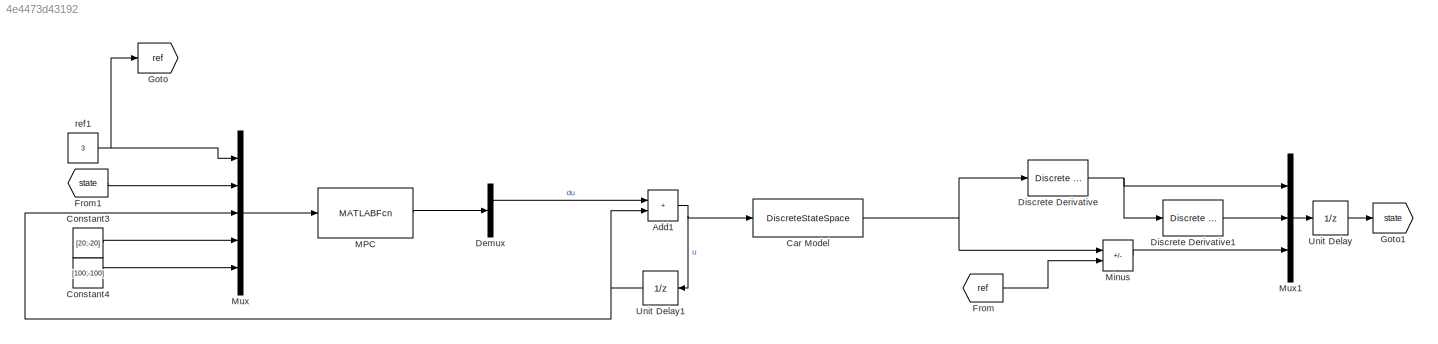
MODEL slx_4e4473d43192
KIND model
CONFIG AbsTol = auto
CONFIG EnableMultiTasking = off
CONFIG FixedStep = 1
CONFIG MaxStep = auto
CONFIG MinStep = auto
CONFIG RelTol = 1e-3
CONFIG SampleTimeConstraint = Unconstrained
CONFIG SolverName = ode1
CONFIG StartTime = 0.0
CONFIG StopTime = 360
BLOCK [Sum] Add1
  IconShape = rectangular
BLOCK [DiscreteStateSpace] Car Model
  A = A
  B = B
  C = C
  D = D
BLOCK [Constant] Constant3
  Value = [20;-20]
BLOCK [Constant] Constant4
  Value = [100;-100]
BLOCK [Demux] Demux
  Outputs = 2
BLOCK [Reference] Discrete Derivative  REF=simulink/Discrete/Discrete Derivative
  SourceBlock = simulink/Discrete/Discrete Derivative
  SourceType = Discrete Derivative
BLOCK [Reference] Discrete Derivative1  REF=simulink/Discrete/Discrete Derivative
  SourceBlock = simulink/Discrete/Discrete Derivative
  SourceType = Discrete Derivative
BLOCK [From] From
  GotoTag = ref
BLOCK [From] From1
  GotoTag = state
BLOCK [Goto] Goto
  GotoTag = ref
BLOCK [Goto] Goto1
  GotoTag = state
BLOCK [MATLABFcn] MPC
  MATLABFcn = CasadiSolver(u(1),u(2:4),u(5),u(6:7),u(8:9))
  Output1D = off
  OutputDimensions = [1,(N*m+N*(n+p))]
BLOCK [Sum] Minus
  IconShape = rectangular
  Inputs = +-
BLOCK [Mux] Mux
  DisplayOption = bar
  Inputs = 5
BLOCK [Mux] Mux1
  DisplayOption = bar
  Inputs = 3
BLOCK [UnitDelay] Unit Delay
  HasFrameUpgradeWarning = on
  SampleTime = -1
BLOCK [UnitDelay] Unit Delay1
  HasFrameUpgradeWarning = on
  NameLocation = top
  SampleTime = -1
BLOCK [Constant] ref1
  Value = 3
NET Add1:1 -> Car Model:1, Unit Delay1:1
NET Car Model:1 -> Discrete Derivative:1, Minus:1
LINE Constant3:1 -> Mux:4
LINE Constant4:1 -> Mux:5
LINE Demux:1 -> Add1:1
LINE Discrete Derivative1:1 -> Mux1:2
NET Discrete Derivative:1 -> Discrete Derivative1:1, Mux1:1
LINE From1:1 -> Mux:2
LINE From:1 -> Minus:2
LINE MPC:1 -> Demux:1
LINE Minus:1 -> Mux1:3
LINE Mux1:1 -> Unit Delay:1
LINE Mux:1 -> MPC:1
NET Unit Delay1:1 -> Add1:2, Mux:3
LINE Unit Delay:1 -> Goto1:1
NET ref1:1 -> Goto:1, Mux:1
note: NET lines group one-source signal fan-out (src -> all destinations, sorted); 1:1 wires keep LINE
